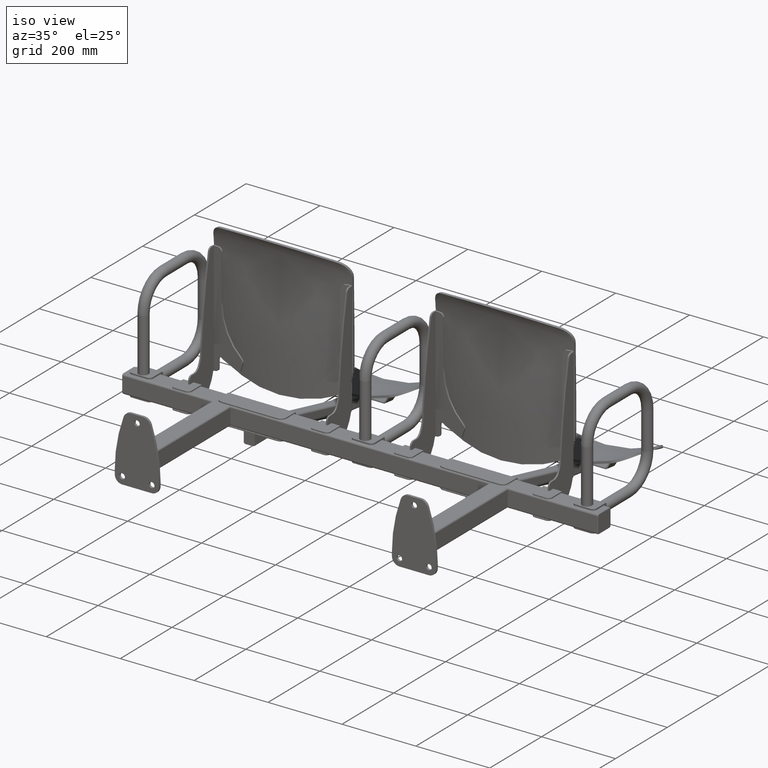
[diagram: clean part render]
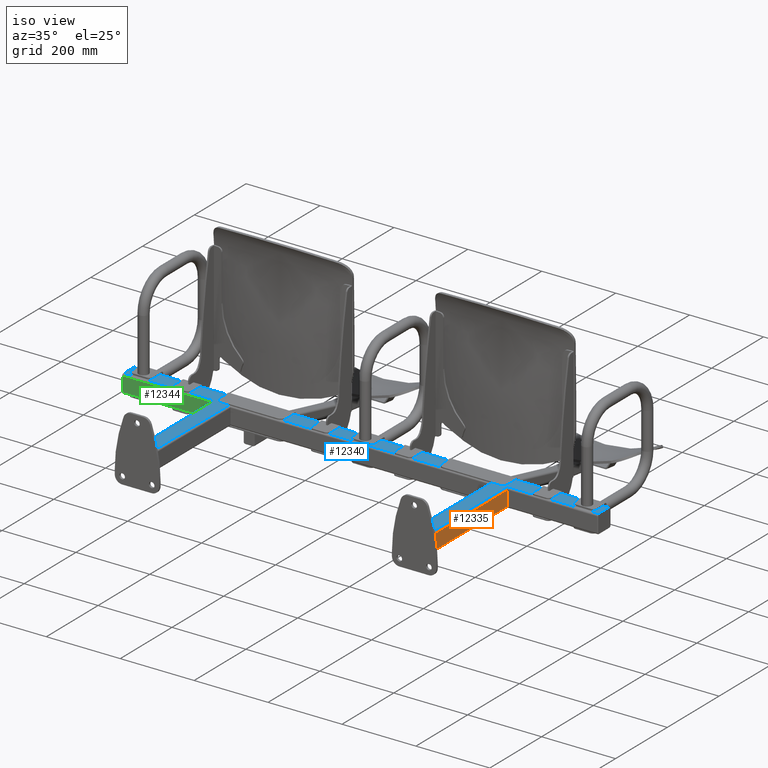
[diagram: same view with three faces highlighted in distinct colors, each labeled with its STEP entity id]
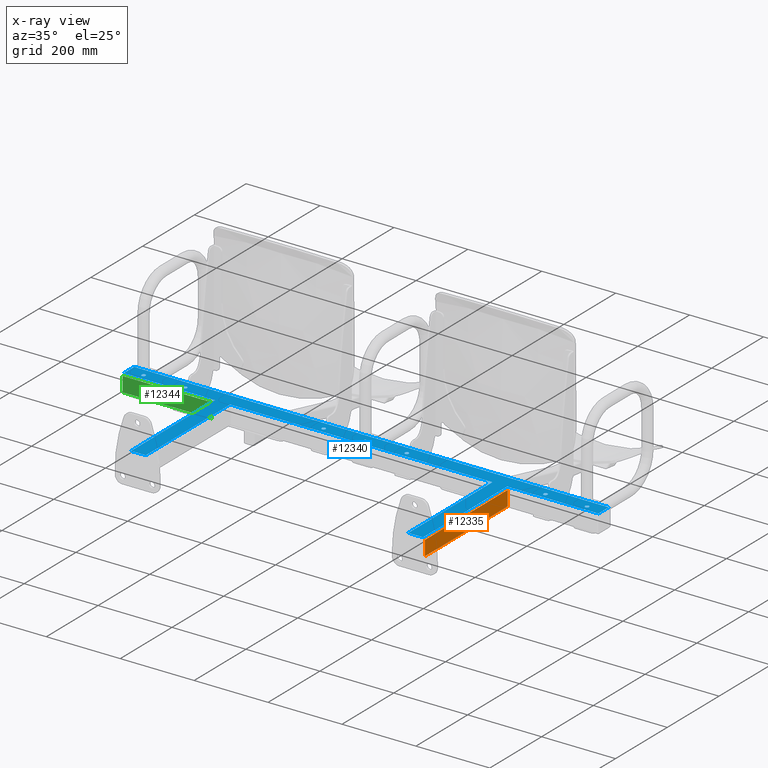
[diagram: x-ray of the same camera — body ghosted, the three highlighted faces saturated]
A machine part, iso view with three faces highlighted in distinct colors.
The next image is the same camera in x-ray (body ghosted, the three faces saturated) — at least one of them is partly hidden behind the body in this view.
Their STEP definitions:

[orange] entity #12335 — the highlighted planar face has unit normal (-1, 0, 0).
#288 = VERTEX_POINT ( 'NONE', #311 ) ;
#311 = CARTESIAN_POINT ( 'NONE',  ( 400.0000000000000000, 6.000000000000000000, 20.00000000000000000 ) ) ;
#1255 = EDGE_CURVE ( 'NONE', #288, #10655, #15370, .T. ) ;
#1258 = EDGE_CURVE ( 'NONE', #10655, #10658, #15368, .T. ) ;
#1260 = EDGE_CURVE ( 'NONE', #10657, #10658, #15374, .T. ) ;
#1262 = EDGE_CURVE ( 'NONE', #10657, #288, #15372, .T. ) ;
#5275 = FACE_OUTER_BOUND ( 'NONE', #12973, .T. ) ;
#10655 = VERTEX_POINT ( 'NONE', #16599 ) ;
#10657 = VERTEX_POINT ( 'NONE', #16601 ) ;
#10658 = VERTEX_POINT ( 'NONE', #16602 ) ;
#11930 = ORIENTED_EDGE ( 'NONE', *, *, #1258, .T. ) ;
#11991 = ORIENTED_EDGE ( 'NONE', *, *, #1255, .T. ) ;
#12255 = ORIENTED_EDGE ( 'NONE', *, *, #1262, .T. ) ;
#12335 = ADVANCED_FACE ( 'NONE', ( #5275 ), #18149, .F. ) ;
#12973 = EDGE_LOOP ( 'NONE', ( #11991, #11930, #20417, #12255 ) ) ;
#14056 = CARTESIAN_POINT ( 'NONE',  ( 400.0000000000000600, 326.0000000000000000, -19.99999999999999600 ) ) ;
#14062 = CARTESIAN_POINT ( 'NONE',  ( 400.0000000000000000, 6.000000000000000000, 20.00000000000000000 ) ) ;
#14065 = CARTESIAN_POINT ( 'NONE',  ( 400.0000000000000000, 6.000000000000000000, 25.00000000000000000 ) ) ;
#14066 = DIRECTION ( 'NONE',  ( -0.0000000000000000000, -0.0000000000000000000, -1.000000000000000000 ) ) ;
#14067 = DIRECTION ( 'NONE',  ( 1.734723475976807100E-016, 1.000000000000000000, 0.0000000000000000000 ) ) ;
#14068 = CARTESIAN_POINT ( 'NONE',  ( 400.0000000000000600, 326.0000000000000000, 25.00000000000000000 ) ) ;
#14070 = DIRECTION ( 'NONE',  ( -0.0000000000000000000, -0.0000000000000000000, -1.000000000000000000 ) ) ;
#14071 = DIRECTION ( 'NONE',  ( -1.734723475976807100E-016, -1.000000000000000000, -0.0000000000000000000 ) ) ;
#15368 = LINE ( 'NONE', #14056, #15375 ) ;
#15370 = LINE ( 'NONE', #14065, #15373 ) ;
#15372 = LINE ( 'NONE', #14062, #15379 ) ;
#15373 = VECTOR ( 'NONE', #14066, 1000.000000000000000 ) ;
#15374 = LINE ( 'NONE', #14068, #15377 ) ;
#15375 = VECTOR ( 'NONE', #14067, 1000.000000000000000 ) ;
#15377 = VECTOR ( 'NONE', #14070, 1000.000000000000000 ) ;
#15379 = VECTOR ( 'NONE', #14071, 1000.000000000000000 ) ;
#16599 = CARTESIAN_POINT ( 'NONE',  ( 400.0000000000000000, 6.000000000000000000, -19.99999999999999600 ) ) ;
#16601 = CARTESIAN_POINT ( 'NONE',  ( 400.0000000000000600, 326.0000000000000000, 20.00000000000000400 ) ) ;
#16602 = CARTESIAN_POINT ( 'NONE',  ( 400.0000000000000600, 326.0000000000000000, -19.99999999999999600 ) ) ;
#17792 = AXIS2_PLACEMENT_3D ( 'NONE', #18151, #18156, #18157 ) ;
#18149 = PLANE ( 'NONE',  #17792 ) ;
#18151 = CARTESIAN_POINT ( 'NONE',  ( 400.0000000000000000, 6.000000000000000000, 25.00000000000000000 ) ) ;
#18156 = DIRECTION ( 'NONE',  ( -1.000000000000000000, 1.734723475976807100E-016, 0.0000000000000000000 ) ) ;
#18157 = DIRECTION ( 'NONE',  ( -1.734723475976807100E-016, -1.000000000000000000, 0.0000000000000000000 ) ) ;
#20417 = ORIENTED_EDGE ( 'NONE', *, *, #1260, .F. ) ;

[blue] entity #12340 — the highlighted planar face has unit normal (0, 0, -1).
#101 = EDGE_LOOP ( 'NONE', ( #10907, #10938 ) ) ;
#102 = EDGE_LOOP ( 'NONE', ( #7640, #7651 ) ) ;
#106 = EDGE_LOOP ( 'NONE', ( #11916, #10920 ) ) ;
#108 = EDGE_LOOP ( 'NONE', ( #10911, #10932, #10925, #10944, #7656, #7655, #10914, #10941, #10919, #10905, #10908, #10929 ) ) ;
#110 = EDGE_LOOP ( 'NONE', ( #10898, #10903 ) ) ;
#111 = EDGE_LOOP ( 'NONE', ( #10918, #10923 ) ) ;
#275 = VERTEX_POINT ( 'NONE', #302 ) ;
#282 = VERTEX_POINT ( 'NONE', #305 ) ;
#302 = CARTESIAN_POINT ( 'NONE',  ( 594.7500000000000000, 347.0000000000000600, 25.00000000000000000 ) ) ;
#305 = CARTESIAN_POINT ( 'NONE',  ( -117.7500000000001600, 347.0000000000000000, 25.00000000000000000 ) ) ;
#4896 = CIRCLE ( 'NONE', #10583, 5.250000000000000900 ) ;
#4909 = CIRCLE ( 'NONE', #10585, 5.249999999999976900 ) ;
#4922 = CIRCLE ( 'NONE', #10587, 5.249999999999976900 ) ;
#4935 = CIRCLE ( 'NONE', #10589, 5.250000000000004400 ) ;
#4948 = CIRCLE ( 'NONE', #10591, 5.249999999999976900 ) ;
#4961 = CIRCLE ( 'NONE', #10593, 5.250000000000004400 ) ;
#4974 = CIRCLE ( 'NONE', #10595, 5.249999999999976900 ) ;
#5262 = FACE_BOUND ( 'NONE', #106, .T. ) ;
#5299 = FACE_BOUND ( 'NONE', #101, .T. ) ;
#5312 = FACE_BOUND ( 'NONE', #102, .T. ) ;
#5314 = FACE_OUTER_BOUND ( 'NONE', #108, .T. ) ;
#5316 = FACE_BOUND ( 'NONE', #110, .T. ) ;
#5318 = FACE_BOUND ( 'NONE', #111, .T. ) ;
#5320 = FACE_BOUND ( 'NONE', #13025, .T. ) ;
#5323 = FACE_BOUND ( 'NONE', #13026, .T. ) ;
#7640 = ORIENTED_EDGE ( 'NONE', *, *, #12166, .F. ) ;
#7651 = ORIENTED_EDGE ( 'NONE', *, *, #11587, .F. ) ;
#7655 = ORIENTED_EDGE ( 'NONE', *, *, #11595, .T. ) ;
#7656 = ORIENTED_EDGE ( 'NONE', *, *, #11594, .T. ) ;
#10480 = AXIS2_PLACEMENT_3D ( 'NONE', #16820, #16821, #16822 ) ;
#10481 = AXIS2_PLACEMENT_3D ( 'NONE', #16823, #16824, #16825 ) ;
#10482 = AXIS2_PLACEMENT_3D ( 'NONE', #16827, #16828, #16829 ) ;
#10483 = AXIS2_PLACEMENT_3D ( 'NONE', #16850, #16851, #16852 ) ;
#10484 = AXIS2_PLACEMENT_3D ( 'NONE', #16853, #16854, #16855 ) ;
#10485 = AXIS2_PLACEMENT_3D ( 'NONE', #16856, #16857, #16858 ) ;
#10486 = AXIS2_PLACEMENT_3D ( 'NONE', #16859, #16860, #16861 ) ;
#10583 = AXIS2_PLACEMENT_3D ( 'NONE', #17610, #17611, #17612 ) ;
#10585 = AXIS2_PLACEMENT_3D ( 'NONE', #17620, #17621, #17622 ) ;
#10587 = AXIS2_PLACEMENT_3D ( 'NONE', #17630, #17631, #17632 ) ;
#10589 = AXIS2_PLACEMENT_3D ( 'NONE', #17640, #17641, #17642 ) ;
#10591 = AXIS2_PLACEMENT_3D ( 'NONE', #17650, #17651, #17652 ) ;
#10593 = AXIS2_PLACEMENT_3D ( 'NONE', #17660, #17661, #17662 ) ;
#10595 = AXIS2_PLACEMENT_3D ( 'NONE', #17670, #17671, #17672 ) ;
#10613 = VERTEX_POINT ( 'NONE', #16557 ) ;
#10615 = VERTEX_POINT ( 'NONE', #16559 ) ;
#10624 = VERTEX_POINT ( 'NONE', #16568 ) ;
#10627 = VERTEX_POINT ( 'NONE', #16571 ) ;
#10651 = VERTEX_POINT ( 'NONE', #16595 ) ;
#10661 = VERTEX_POINT ( 'NONE', #16605 ) ;
#10678 = VERTEX_POINT ( 'NONE', #16622 ) ;
#10679 = VERTEX_POINT ( 'NONE', #16623 ) ;
#10680 = VERTEX_POINT ( 'NONE', #16624 ) ;
#10705 = VERTEX_POINT ( 'NONE', #16649 ) ;
#10706 = VERTEX_POINT ( 'NONE', #16650 ) ;
#10708 = VERTEX_POINT ( 'NONE', #16652 ) ;
#10712 = VERTEX_POINT ( 'NONE', #16656 ) ;
#10716 = VERTEX_POINT ( 'NONE', #16660 ) ;
#10723 = VERTEX_POINT ( 'NONE', #16667 ) ;
#10725 = VERTEX_POINT ( 'NONE', #16669 ) ;
#10726 = VERTEX_POINT ( 'NONE', #16670 ) ;
#10734 = VERTEX_POINT ( 'NONE', #16678 ) ;
#10739 = VERTEX_POINT ( 'NONE', #16683 ) ;
#10740 = VERTEX_POINT ( 'NONE', #16684 ) ;
#10743 = VERTEX_POINT ( 'NONE', #16687 ) ;
#10747 = VERTEX_POINT ( 'NONE', #16691 ) ;
#10766 = VERTEX_POINT ( 'NONE', #16710 ) ;
#10777 = VERTEX_POINT ( 'NONE', #16721 ) ;
#10897 = ORIENTED_EDGE ( 'NONE', *, *, #11604, .F. ) ;
#10898 = ORIENTED_EDGE ( 'NONE', *, *, #12174, .F. ) ;
#10903 = ORIENTED_EDGE ( 'NONE', *, *, #11588, .F. ) ;
#10905 = ORIENTED_EDGE ( 'NONE', *, *, #11598, .T. ) ;
#10907 = ORIENTED_EDGE ( 'NONE', *, *, #12186, .F. ) ;
#10908 = ORIENTED_EDGE ( 'NONE', *, *, #11599, .T. ) ;
#10911 = ORIENTED_EDGE ( 'NONE', *, *, #11590, .T. ) ;
#10914 = ORIENTED_EDGE ( 'NONE', *, *, #11561, .T. ) ;
#10918 = ORIENTED_EDGE ( 'NONE', *, *, #12178, .F. ) ;
#10919 = ORIENTED_EDGE ( 'NONE', *, *, #11597, .T. ) ;
#10920 = ORIENTED_EDGE ( 'NONE', *, *, #11589, .F. ) ;
#10923 = ORIENTED_EDGE ( 'NONE', *, *, #11602, .F. ) ;
#10924 = ORIENTED_EDGE ( 'NONE', *, *, #12170, .F. ) ;
#10925 = ORIENTED_EDGE ( 'NONE', *, *, #11592, .T. ) ;
#10929 = ORIENTED_EDGE ( 'NONE', *, *, #11600, .T. ) ;
#10932 = ORIENTED_EDGE ( 'NONE', *, *, #11591, .T. ) ;
#10934 = ORIENTED_EDGE ( 'NONE', *, *, #12162, .F. ) ;
#10935 = ORIENTED_EDGE ( 'NONE', *, *, #11603, .F. ) ;
#10938 = ORIENTED_EDGE ( 'NONE', *, *, #11601, .F. ) ;
#10941 = ORIENTED_EDGE ( 'NONE', *, *, #11596, .T. ) ;
#10944 = ORIENTED_EDGE ( 'NONE', *, *, #11593, .T. ) ;
#11561 = EDGE_CURVE ( 'NONE', #10777, #10743, #15533, .T. ) ;
#11587 = EDGE_CURVE ( 'NONE', #10678, #275, #15572, .T. ) ;
#11588 = EDGE_CURVE ( 'NONE', #10747, #10651, #15568, .T. ) ;
#11589 = EDGE_CURVE ( 'NONE', #10615, #282, #15573, .T. ) ;
#11590 = EDGE_CURVE ( 'NONE', #10706, #10705, #15574, .T. ) ;
#11591 = EDGE_CURVE ( 'NONE', #10705, #10723, #15576, .T. ) ;
#11592 = EDGE_CURVE ( 'NONE', #10723, #10726, #15578, .T. ) ;
#11593 = EDGE_CURVE ( 'NONE', #10726, #10725, #15580, .T. ) ;
#11594 = EDGE_CURVE ( 'NONE', #10725, #10734, #15582, .T. ) ;
#11595 = EDGE_CURVE ( 'NONE', #10734, #10777, #15584, .T. ) ;
#11596 = EDGE_CURVE ( 'NONE', #10743, #10661, #15586, .T. ) ;
#11597 = EDGE_CURVE ( 'NONE', #10661, #10739, #15588, .T. ) ;
#11598 = EDGE_CURVE ( 'NONE', #10739, #10740, #15590, .T. ) ;
#11599 = EDGE_CURVE ( 'NONE', #10740, #10766, #15592, .T. ) ;
#11600 = EDGE_CURVE ( 'NONE', #10766, #10706, #15594, .T. ) ;
#11601 = EDGE_CURVE ( 'NONE', #10624, #10716, #15596, .T. ) ;
#11602 = EDGE_CURVE ( 'NONE', #10613, #10712, #15575, .T. ) ;
#11603 = EDGE_CURVE ( 'NONE', #10680, #10679, #15598, .T. ) ;
#11604 = EDGE_CURVE ( 'NONE', #10627, #10708, #15599, .T. ) ;
#11916 = ORIENTED_EDGE ( 'NONE', *, *, #12182, .F. ) ;
#12162 = EDGE_CURVE ( 'NONE', #10708, #10627, #4896, .T. ) ;
#12166 = EDGE_CURVE ( 'NONE', #275, #10678, #4909, .T. ) ;
#12170 = EDGE_CURVE ( 'NONE', #10679, #10680, #4922, .T. ) ;
#12174 = EDGE_CURVE ( 'NONE', #10651, #10747, #4935, .T. ) ;
#12178 = EDGE_CURVE ( 'NONE', #10712, #10613, #4948, .T. ) ;
#12182 = EDGE_CURVE ( 'NONE', #282, #10615, #4961, .T. ) ;
#12186 = EDGE_CURVE ( 'NONE', #10716, #10624, #4974, .T. ) ;
#12340 = ADVANCED_FACE ( 'NONE', ( #5312, #5316, #5262, #5314, #5299, #5318, #5320, #5323 ), #18176, .F. ) ;
#13025 = EDGE_LOOP ( 'NONE', ( #10924, #10935 ) ) ;
#13026 = EDGE_LOOP ( 'NONE', ( #10934, #10897 ) ) ;
#15533 = LINE ( 'NONE', #16748, #15535 ) ;
#15535 = VECTOR ( 'NONE', #16749, 1000.000000000000000 ) ;
#15568 = CIRCLE ( 'NONE', #10481, 5.250000000000004400 ) ;
#15572 = CIRCLE ( 'NONE', #10480, 5.249999999999976900 ) ;
#15573 = CIRCLE ( 'NONE', #10482, 5.250000000000004400 ) ;
#15574 = LINE ( 'NONE', #16826, #15577 ) ;
#15575 = CIRCLE ( 'NONE', #10484, 5.249999999999976900 ) ;
#15576 = LINE ( 'NONE', #16830, #15579 ) ;
#15577 = VECTOR ( 'NONE', #16816, 1000.000000000000000 ) ;
#15578 = LINE ( 'NONE', #16832, #15581 ) ;
#15579 = VECTOR ( 'NONE', #16831, 1000.000000000000000 ) ;
#15580 = LINE ( 'NONE', #16834, #15583 ) ;
#15581 = VECTOR ( 'NONE', #16833, 1000.000000000000000 ) ;
#15582 = LINE ( 'NONE', #16836, #15585 ) ;
#15583 = VECTOR ( 'NONE', #16835, 1000.000000000000000 ) ;
#15584 = LINE ( 'NONE', #16838, #15587 ) ;
#15585 = VECTOR ( 'NONE', #16837, 1000.000000000000000 ) ;
#15586 = LINE ( 'NONE', #16840, #15589 ) ;
#15587 = VECTOR ( 'NONE', #16839, 1000.000000000000000 ) ;
#15588 = LINE ( 'NONE', #16842, #15591 ) ;
#15589 = VECTOR ( 'NONE', #16841, 1000.000000000000000 ) ;
#15590 = LINE ( 'NONE', #16844, #15593 ) ;
#15591 = VECTOR ( 'NONE', #16843, 1000.000000000000000 ) ;
#15592 = LINE ( 'NONE', #16846, #15595 ) ;
#15593 = VECTOR ( 'NONE', #16845, 1000.000000000000000 ) ;
#15594 = LINE ( 'NONE', #16848, #15597 ) ;
#15595 = VECTOR ( 'NONE', #16847, 1000.000000000000000 ) ;
#15596 = CIRCLE ( 'NONE', #10483, 5.249999999999976900 ) ;
#15597 = VECTOR ( 'NONE', #16849, 1000.000000000000000 ) ;
#15598 = CIRCLE ( 'NONE', #10485, 5.249999999999976900 ) ;
#15599 = CIRCLE ( 'NONE', #10486, 5.250000000000000900 ) ;
#16557 = CARTESIAN_POINT ( 'NONE',  ( 492.7500000000001100, 347.0000000000000000, 25.00000000000000000 ) ) ;
#16559 = CARTESIAN_POINT ( 'NONE',  ( -107.2500000000001600, 347.0000000000000000, 25.00000000000000000 ) ) ;
#16568 = CARTESIAN_POINT ( 'NONE',  ( -482.2500000000001700, 347.0000000000000000, 25.00000000000000000 ) ) ;
#16571 = CARTESIAN_POINT ( 'NONE',  ( 5.250000000000000900, 347.0000000000000600, 25.00000000000000000 ) ) ;
#16595 = CARTESIAN_POINT ( 'NONE',  ( 107.2500000000001600, 347.0000000000000000, 25.00000000000000000 ) ) ;
#16605 = CARTESIAN_POINT ( 'NONE',  ( -354.9999999999999400, 331.0000000000000000, 25.00000000000000000 ) ) ;
#16622 = CARTESIAN_POINT ( 'NONE',  ( 605.2500000000000000, 347.0000000000000600, 25.00000000000000000 ) ) ;
#16623 = CARTESIAN_POINT ( 'NONE',  ( -605.2500000000000000, 347.0000000000000600, 25.00000000000000000 ) ) ;
#16624 = CARTESIAN_POINT ( 'NONE',  ( -594.7500000000000000, 347.0000000000000600, 25.00000000000000000 ) ) ;
#16649 = CARTESIAN_POINT ( 'NONE',  ( 642.0000000000002300, 331.0000000000000000, 25.00000000000000000 ) ) ;
#16650 = CARTESIAN_POINT ( 'NONE',  ( 395.0000000000000600, 331.0000000000000000, 25.00000000000000000 ) ) ;
#16652 = CARTESIAN_POINT ( 'NONE',  ( -5.250000000000000900, 347.0000000000000600, 25.00000000000000000 ) ) ;
#16656 = CARTESIAN_POINT ( 'NONE',  ( 482.2500000000001700, 347.0000000000000000, 25.00000000000000000 ) ) ;
#16660 = CARTESIAN_POINT ( 'NONE',  ( -492.7500000000001100, 347.0000000000000000, 25.00000000000000000 ) ) ;
#16667 = CARTESIAN_POINT ( 'NONE',  ( 642.0000000000000000, 371.0000000000000000, 25.00000000000000000 ) ) ;
#16669 = CARTESIAN_POINT ( 'NONE',  ( -642.0000000000001100, 331.0000000000000000, 25.00000000000000000 ) ) ;
#16670 = CARTESIAN_POINT ( 'NONE',  ( -642.0000000000001100, 371.0000000000000000, 25.00000000000000000 ) ) ;
#16678 = CARTESIAN_POINT ( 'NONE',  ( -395.0000000000000600, 331.0000000000000000, 25.00000000000000000 ) ) ;
#16683 = CARTESIAN_POINT ( 'NONE',  ( 354.9999999999999400, 331.0000000000000000, 25.00000000000000000 ) ) ;
#16684 = CARTESIAN_POINT ( 'NONE',  ( 355.0000000000000000, 6.000000000000000000, 25.00000000000000000 ) ) ;
#16687 = CARTESIAN_POINT ( 'NONE',  ( -355.0000000000000000, 6.000000000000000000, 25.00000000000000000 ) ) ;
#16691 = CARTESIAN_POINT ( 'NONE',  ( 117.7500000000001600, 347.0000000000000000, 25.00000000000000000 ) ) ;
#16710 = CARTESIAN_POINT ( 'NONE',  ( 395.0000000000000000, 6.000000000000000000, 25.00000000000000000 ) ) ;
#16721 = CARTESIAN_POINT ( 'NONE',  ( -395.0000000000000000, 6.000000000000000000, 25.00000000000000000 ) ) ;
#16748 = CARTESIAN_POINT ( 'NONE',  ( -400.0000000000000000, 6.000000000000000000, 25.00000000000000000 ) ) ;
#16749 = DIRECTION ( 'NONE',  ( 1.000000000000000000, 0.0000000000000000000, 0.0000000000000000000 ) ) ;
#16816 = DIRECTION ( 'NONE',  ( 1.000000000000000000, 0.0000000000000000000, 0.0000000000000000000 ) ) ;
#16820 = CARTESIAN_POINT ( 'NONE',  ( 600.0000000000000000, 347.0000000000000600, 25.00000000000000000 ) ) ;
#16821 = DIRECTION ( 'NONE',  ( 0.0000000000000000000, 0.0000000000000000000, 1.000000000000000000 ) ) ;
#16822 = DIRECTION ( 'NONE',  ( -1.000000000000000000, 0.0000000000000000000, 0.0000000000000000000 ) ) ;
#16823 = CARTESIAN_POINT ( 'NONE',  ( 112.5000000000001600, 347.0000000000000000, 25.00000000000000000 ) ) ;
#16824 = DIRECTION ( 'NONE',  ( 0.0000000000000000000, 0.0000000000000000000, 1.000000000000000000 ) ) ;
#16825 = DIRECTION ( 'NONE',  ( -1.000000000000000000, 0.0000000000000000000, 0.0000000000000000000 ) ) ;
#16826 = CARTESIAN_POINT ( 'NONE',  ( 0.0000000000000000000, 331.0000000000000000, 25.00000000000000000 ) ) ;
#16827 = CARTESIAN_POINT ( 'NONE',  ( -112.5000000000001600, 347.0000000000000000, 25.00000000000000000 ) ) ;
#16828 = DIRECTION ( 'NONE',  ( 0.0000000000000000000, 0.0000000000000000000, 1.000000000000000000 ) ) ;
#16829 = DIRECTION ( 'NONE',  ( 1.000000000000000000, 0.0000000000000000000, 0.0000000000000000000 ) ) ;
#16830 = CARTESIAN_POINT ( 'NONE',  ( 642.0000000000009100, 1.425526363618703400E-012, 25.00000000000000000 ) ) ;
#16831 = DIRECTION ( 'NONE',  ( -2.220446049250313500E-015, 1.000000000000000000, 0.0000000000000000000 ) ) ;
#16832 = CARTESIAN_POINT ( 'NONE',  ( 0.0000000000000000000, 371.0000000000000000, 25.00000000000000000 ) ) ;
#16833 = DIRECTION ( 'NONE',  ( -1.000000000000000000, 0.0000000000000000000, 0.0000000000000000000 ) ) ;
#16834 = CARTESIAN_POINT ( 'NONE',  ( -642.0000000000001100, 0.0000000000000000000, 25.00000000000000000 ) ) ;
#16835 = DIRECTION ( 'NONE',  ( 0.0000000000000000000, -1.000000000000000000, 0.0000000000000000000 ) ) ;
#16836 = CARTESIAN_POINT ( 'NONE',  ( 0.0000000000000000000, 331.0000000000000000, 25.00000000000000000 ) ) ;
#16837 = DIRECTION ( 'NONE',  ( 1.000000000000000000, 0.0000000000000000000, 0.0000000000000000000 ) ) ;
#16838 = CARTESIAN_POINT ( 'NONE',  ( -395.0000000000000000, -6.852157730108388000E-014, 25.00000000000000000 ) ) ;
#16839 = DIRECTION ( 'NONE',  ( 1.734723475976807100E-016, -1.000000000000000000, 0.0000000000000000000 ) ) ;
#16840 = CARTESIAN_POINT ( 'NONE',  ( -355.0000000000000000, 6.158268339717665200E-014, 25.00000000000000000 ) ) ;
#16841 = DIRECTION ( 'NONE',  ( 1.734723475976807100E-016, 1.000000000000000000, 0.0000000000000000000 ) ) ;
#16842 = CARTESIAN_POINT ( 'NONE',  ( 0.0000000000000000000, 331.0000000000000000, 25.00000000000000000 ) ) ;
#16843 = DIRECTION ( 'NONE',  ( 1.000000000000000000, 0.0000000000000000000, 0.0000000000000000000 ) ) ;
#16844 = CARTESIAN_POINT ( 'NONE',  ( 355.0000000000000000, 6.158268339717665200E-014, 25.00000000000000000 ) ) ;
#16845 = DIRECTION ( 'NONE',  ( 1.734723475976807100E-016, -1.000000000000000000, 0.0000000000000000000 ) ) ;
#16846 = CARTESIAN_POINT ( 'NONE',  ( 350.0000000000000000, 6.000000000000000000, 25.00000000000000000 ) ) ;
#16847 = DIRECTION ( 'NONE',  ( 1.000000000000000000, 0.0000000000000000000, 0.0000000000000000000 ) ) ;
#16848 = CARTESIAN_POINT ( 'NONE',  ( 395.0000000000000000, -6.852157730108388000E-014, 25.00000000000000000 ) ) ;
#16849 = DIRECTION ( 'NONE',  ( 1.734723475976807100E-016, 1.000000000000000000, 0.0000000000000000000 ) ) ;
#16850 = CARTESIAN_POINT ( 'NONE',  ( -487.5000000000001700, 347.0000000000000000, 25.00000000000000000 ) ) ;
#16851 = DIRECTION ( 'NONE',  ( 0.0000000000000000000, 0.0000000000000000000, 1.000000000000000000 ) ) ;
#16852 = DIRECTION ( 'NONE',  ( 1.000000000000000000, 0.0000000000000000000, 0.0000000000000000000 ) ) ;
#16853 = CARTESIAN_POINT ( 'NONE',  ( 487.5000000000001700, 347.0000000000000000, 25.00000000000000000 ) ) ;
#16854 = DIRECTION ( 'NONE',  ( 0.0000000000000000000, 0.0000000000000000000, 1.000000000000000000 ) ) ;
#16855 = DIRECTION ( 'NONE',  ( -1.000000000000000000, 0.0000000000000000000, 0.0000000000000000000 ) ) ;
#16856 = CARTESIAN_POINT ( 'NONE',  ( -600.0000000000000000, 347.0000000000000600, 25.00000000000000000 ) ) ;
#16857 = DIRECTION ( 'NONE',  ( 0.0000000000000000000, 0.0000000000000000000, 1.000000000000000000 ) ) ;
#16858 = DIRECTION ( 'NONE',  ( 1.000000000000000000, 0.0000000000000000000, 0.0000000000000000000 ) ) ;
#16859 = CARTESIAN_POINT ( 'NONE',  ( 0.0000000000000000000, 347.0000000000000600, 25.00000000000000000 ) ) ;
#16860 = DIRECTION ( 'NONE',  ( 0.0000000000000000000, 0.0000000000000000000, 1.000000000000000000 ) ) ;
#16861 = DIRECTION ( 'NONE',  ( 1.000000000000000000, 0.0000000000000000000, 0.0000000000000000000 ) ) ;
#17610 = CARTESIAN_POINT ( 'NONE',  ( 0.0000000000000000000, 347.0000000000000600, 25.00000000000000000 ) ) ;
#17611 = DIRECTION ( 'NONE',  ( 0.0000000000000000000, 0.0000000000000000000, 1.000000000000000000 ) ) ;
#17612 = DIRECTION ( 'NONE',  ( 1.000000000000000000, 0.0000000000000000000, 0.0000000000000000000 ) ) ;
#17620 = CARTESIAN_POINT ( 'NONE',  ( 600.0000000000000000, 347.0000000000000600, 25.00000000000000000 ) ) ;
#17621 = DIRECTION ( 'NONE',  ( 0.0000000000000000000, 0.0000000000000000000, 1.000000000000000000 ) ) ;
#17622 = DIRECTION ( 'NONE',  ( -1.000000000000000000, 0.0000000000000000000, 0.0000000000000000000 ) ) ;
#17630 = CARTESIAN_POINT ( 'NONE',  ( -600.0000000000000000, 347.0000000000000600, 25.00000000000000000 ) ) ;
#17631 = DIRECTION ( 'NONE',  ( 0.0000000000000000000, 0.0000000000000000000, 1.000000000000000000 ) ) ;
#17632 = DIRECTION ( 'NONE',  ( 1.000000000000000000, 0.0000000000000000000, 0.0000000000000000000 ) ) ;
#17640 = CARTESIAN_POINT ( 'NONE',  ( 112.5000000000001600, 347.0000000000000000, 25.00000000000000000 ) ) ;
#17641 = DIRECTION ( 'NONE',  ( 0.0000000000000000000, 0.0000000000000000000, 1.000000000000000000 ) ) ;
#17642 = DIRECTION ( 'NONE',  ( -1.000000000000000000, 0.0000000000000000000, 0.0000000000000000000 ) ) ;
#17650 = CARTESIAN_POINT ( 'NONE',  ( 487.5000000000001700, 347.0000000000000000, 25.00000000000000000 ) ) ;
#17651 = DIRECTION ( 'NONE',  ( 0.0000000000000000000, 0.0000000000000000000, 1.000000000000000000 ) ) ;
#17652 = DIRECTION ( 'NONE',  ( -1.000000000000000000, 0.0000000000000000000, 0.0000000000000000000 ) ) ;
#17660 = CARTESIAN_POINT ( 'NONE',  ( -112.5000000000001600, 347.0000000000000000, 25.00000000000000000 ) ) ;
#17661 = DIRECTION ( 'NONE',  ( 0.0000000000000000000, 0.0000000000000000000, 1.000000000000000000 ) ) ;
#17662 = DIRECTION ( 'NONE',  ( 1.000000000000000000, 0.0000000000000000000, 0.0000000000000000000 ) ) ;
#17670 = CARTESIAN_POINT ( 'NONE',  ( -487.5000000000001700, 347.0000000000000000, 25.00000000000000000 ) ) ;
#17671 = DIRECTION ( 'NONE',  ( 0.0000000000000000000, 0.0000000000000000000, 1.000000000000000000 ) ) ;
#17672 = DIRECTION ( 'NONE',  ( 1.000000000000000000, 0.0000000000000000000, 0.0000000000000000000 ) ) ;
#17797 = AXIS2_PLACEMENT_3D ( 'NONE', #18175, #18171, #18177 ) ;
#18171 = DIRECTION ( 'NONE',  ( 0.0000000000000000000, 0.0000000000000000000, -1.000000000000000000 ) ) ;
#18175 = CARTESIAN_POINT ( 'NONE',  ( 0.0000000000000000000, 0.0000000000000000000, 25.00000000000000000 ) ) ;
#18176 = PLANE ( 'NONE',  #17797 ) ;
#18177 = DIRECTION ( 'NONE',  ( -1.000000000000000000, 0.0000000000000000000, -0.0000000000000000000 ) ) ;

[green] entity #12344 — the highlighted planar face has unit normal (0, 1, 0).
#5351 = FACE_OUTER_BOUND ( 'NONE', #12980, .T. ) ;
#10604 = VERTEX_POINT ( 'NONE', #16548 ) ;
#10614 = VERTEX_POINT ( 'NONE', #16558 ) ;
#10711 = VERTEX_POINT ( 'NONE', #16655 ) ;
#10765 = VERTEX_POINT ( 'NONE', #16709 ) ;
#10915 = ORIENTED_EDGE ( 'NONE', *, *, #11623, .T. ) ;
#11623 = EDGE_CURVE ( 'NONE', #10765, #10711, #15629, .T. ) ;
#11624 = EDGE_CURVE ( 'NONE', #10711, #10614, #15630, .T. ) ;
#11625 = EDGE_CURVE ( 'NONE', #10614, #10604, #15633, .T. ) ;
#11626 = EDGE_CURVE ( 'NONE', #10765, #10604, #15635, .T. ) ;
#12344 = ADVANCED_FACE ( 'NONE', ( #5351 ), #18186, .F. ) ;
#12980 = EDGE_LOOP ( 'NONE', ( #10915, #20414, #20418, #19723 ) ) ;
#15629 = LINE ( 'NONE', #16905, #15632 ) ;
#15630 = LINE ( 'NONE', #16904, #15634 ) ;
#15632 = VECTOR ( 'NONE', #16894, 1000.000000000000000 ) ;
#15633 = LINE ( 'NONE', #16911, #15636 ) ;
#15634 = VECTOR ( 'NONE', #16910, 1000.000000000000000 ) ;
#15635 = LINE ( 'NONE', #16913, #15638 ) ;
#15636 = VECTOR ( 'NONE', #16912, 1000.000000000000000 ) ;
#15638 = VECTOR ( 'NONE', #16914, 1000.000000000000000 ) ;
#16548 = CARTESIAN_POINT ( 'NONE',  ( -400.0000000000000600, 326.0000000000000000, -19.99999999999999600 ) ) ;
#16558 = CARTESIAN_POINT ( 'NONE',  ( -642.0000000000001100, 326.0000000000000000, -19.99999999999999600 ) ) ;
#16655 = CARTESIAN_POINT ( 'NONE',  ( -642.0000000000001100, 326.0000000000000000, 20.00000000000000000 ) ) ;
#16709 = CARTESIAN_POINT ( 'NONE',  ( -400.0000000000000600, 326.0000000000000000, 20.00000000000000400 ) ) ;
#16894 = DIRECTION ( 'NONE',  ( -1.000000000000000000, -0.0000000000000000000, -0.0000000000000000000 ) ) ;
#16904 = CARTESIAN_POINT ( 'NONE',  ( -642.0000000000001100, 326.0000000000000000, 25.00000000000000000 ) ) ;
#16905 = CARTESIAN_POINT ( 'NONE',  ( -400.0000000000000600, 326.0000000000000000, 20.00000000000000000 ) ) ;
#16910 = DIRECTION ( 'NONE',  ( 0.0000000000000000000, 0.0000000000000000000, -1.000000000000000000 ) ) ;
#16911 = CARTESIAN_POINT ( 'NONE',  ( -400.0000000000000600, 326.0000000000000000, -19.99999999999999600 ) ) ;
#16912 = DIRECTION ( 'NONE',  ( 1.000000000000000000, 0.0000000000000000000, 0.0000000000000000000 ) ) ;
#16913 = CARTESIAN_POINT ( 'NONE',  ( -400.0000000000000600, 326.0000000000000000, 25.00000000000000000 ) ) ;
#16914 = DIRECTION ( 'NONE',  ( -0.0000000000000000000, -0.0000000000000000000, -1.000000000000000000 ) ) ;
#17801 = AXIS2_PLACEMENT_3D ( 'NONE', #18187, #18192, #18193 ) ;
#18186 = PLANE ( 'NONE',  #17801 ) ;
#18187 = CARTESIAN_POINT ( 'NONE',  ( -400.0000000000000600, 326.0000000000000000, 25.00000000000000000 ) ) ;
#18192 = DIRECTION ( 'NONE',  ( 0.0000000000000000000, 1.000000000000000000, -0.0000000000000000000 ) ) ;
#18193 = DIRECTION ( 'NONE',  ( 0.0000000000000000000, 0.0000000000000000000, 1.000000000000000000 ) ) ;
#19723 = ORIENTED_EDGE ( 'NONE', *, *, #11626, .F. ) ;
#20414 = ORIENTED_EDGE ( 'NONE', *, *, #11624, .T. ) ;
#20418 = ORIENTED_EDGE ( 'NONE', *, *, #11625, .T. ) ;